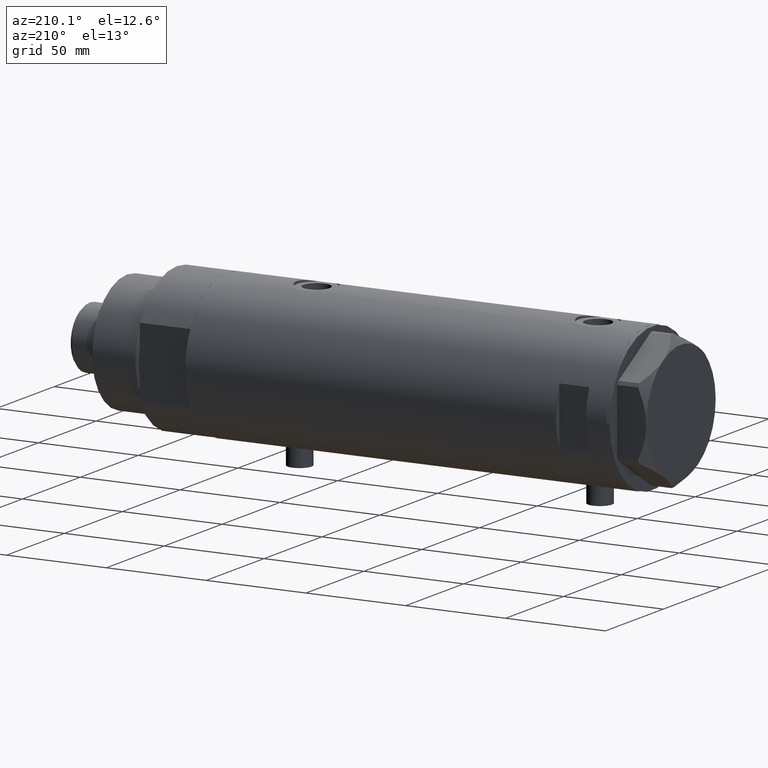
[diagram: clean part render]
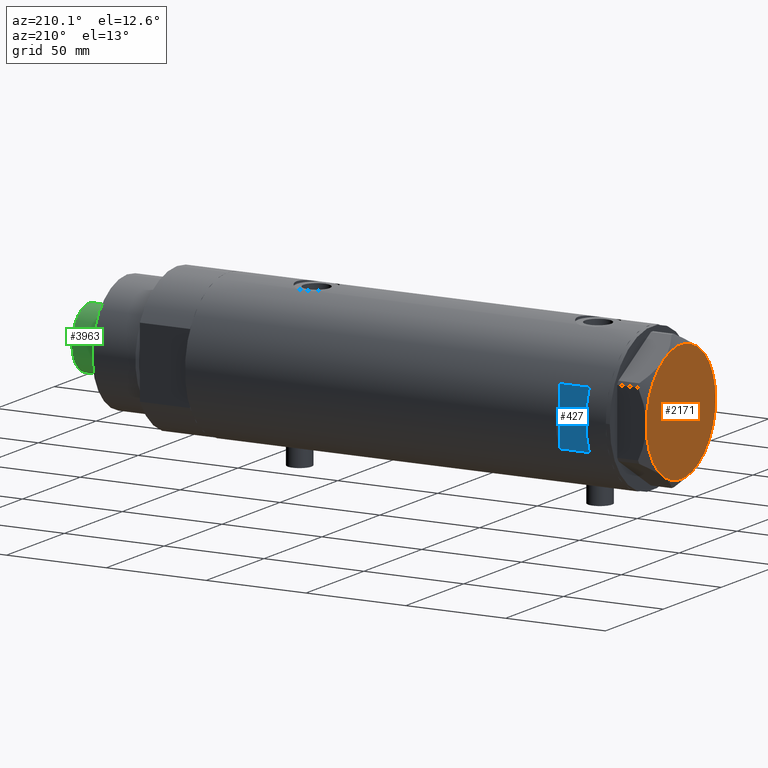
[diagram: same view with three faces highlighted in distinct colors, each labeled with its STEP entity id]
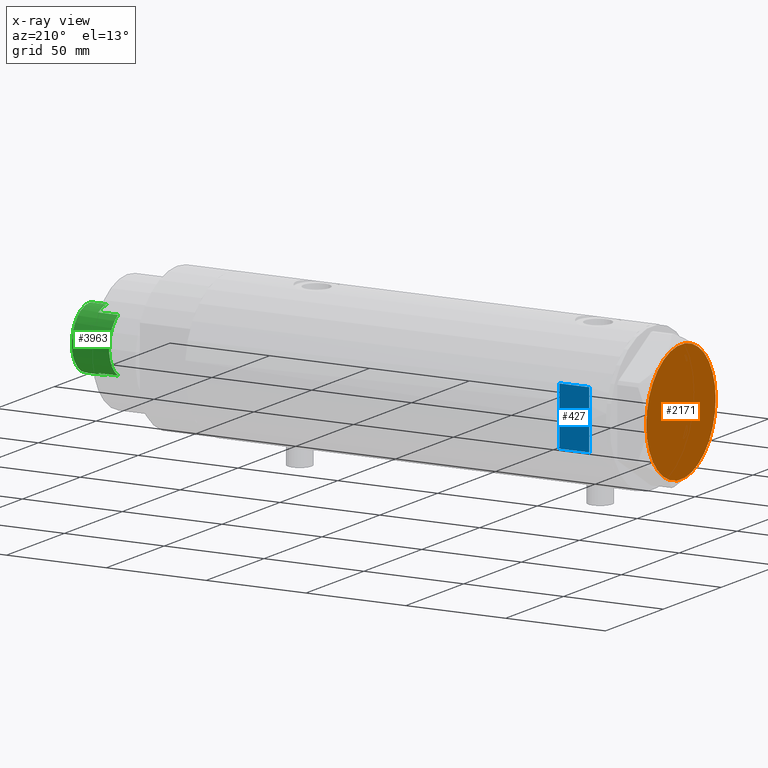
[diagram: x-ray of the same camera — body ghosted, the three highlighted faces saturated]
A machine part, auxiliary view with three faces highlighted in distinct colors.
The next image is the same camera in x-ray (body ghosted, the three faces saturated) — at least one of them is partly hidden behind the body in this view.
Their STEP definitions:

[orange] entity #2171 — the highlighted planar face has unit normal (-1, -0, 0).
#147 = CARTESIAN_POINT ( 'NONE',  ( 0.000000000000000000, 0.000000000000000000, 14.50000000000000000 ) ) ;
#154 = AXIS2_PLACEMENT_3D ( 'NONE', #147, #1522, #2904 ) ;
#163 = VERTEX_POINT ( 'NONE', #2299 ) ;
#252 = VERTEX_POINT ( 'NONE', #1017 ) ;
#326 = DIRECTION ( 'NONE',  ( 1.000000000000000000, 0.000000000000000000, 0.000000000000000000 ) ) ;
#576 = CARTESIAN_POINT ( 'NONE',  ( 0.000000000000000000, 0.000000000000000000, 14.50000000000000000 ) ) ;
#628 = CARTESIAN_POINT ( 'NONE',  ( -14.99999999999999645, -25.98076211353316367, 14.50000000000000000 ) ) ;
#657 = EDGE_LOOP ( 'NONE', ( #2650, #2087, #3191, #1166, #1111, #3666 ) ) ;
#757 = DIRECTION ( 'NONE',  ( 1.000000000000000000, 0.000000000000000000, 0.000000000000000000 ) ) ;
#834 = VERTEX_POINT ( 'NONE', #2474 ) ;
#932 = CARTESIAN_POINT ( 'NONE',  ( -30.00000000000000000, 0.000000000000000000, 14.50000000000000000 ) ) ;
#934 = DIRECTION ( 'NONE',  ( 1.000000000000000000, 0.000000000000000000, 0.000000000000000000 ) ) ;
#941 = CARTESIAN_POINT ( 'NONE',  ( 0.000000000000000000, 0.000000000000000000, 14.50000000000000000 ) ) ;
#964 = PLANE ( 'NONE',  #1020 ) ;
#982 = FACE_OUTER_BOUND ( 'NONE', #657, .T. ) ;
#1017 = CARTESIAN_POINT ( 'NONE',  ( -14.99999999999999645, 25.98076211353316367, 14.50000000000000000 ) ) ;
#1020 = AXIS2_PLACEMENT_3D ( 'NONE', #941, #3719, #1624 ) ;
#1111 = ORIENTED_EDGE ( 'NONE', *, *, #1738, .T. ) ;
#1166 = ORIENTED_EDGE ( 'NONE', *, *, #3313, .T. ) ;
#1297 = CIRCLE ( 'NONE', #1444, 30.00000000000000000 ) ;
#1299 = DIRECTION ( 'NONE',  ( 1.000000000000000000, 0.000000000000000000, 0.000000000000000000 ) ) ;
#1444 = AXIS2_PLACEMENT_3D ( 'NONE', #4167, #1779, #757 ) ;
#1505 = EDGE_CURVE ( 'NONE', #4091, #252, #1297, .T. ) ;
#1521 = CIRCLE ( 'NONE', #154, 30.00000000000000000 ) ;
#1522 = DIRECTION ( 'NONE',  ( 0.000000000000000000, 0.000000000000000000, 1.000000000000000000 ) ) ;
#1624 = DIRECTION ( 'NONE',  ( 1.000000000000000000, 0.000000000000000000, -0.000000000000000000 ) ) ;
#1738 = EDGE_CURVE ( 'NONE', #2560, #3235, #1521, .T. ) ;
#1779 = DIRECTION ( 'NONE',  ( 0.000000000000000000, 0.000000000000000000, 1.000000000000000000 ) ) ;
#1831 = AXIS2_PLACEMENT_3D ( 'NONE', #3735, #2653, #1299 ) ;
#2087 = ORIENTED_EDGE ( 'NONE', *, *, #2618, .T. ) ;
#2171 = ADVANCED_FACE ( 'NONE', ( #982 ), #964, .T. ) ;
#2210 = EDGE_CURVE ( 'NONE', #163, #834, #3860, .T. ) ;
#2299 = CARTESIAN_POINT ( 'NONE',  ( 14.99999999999998757, -25.98076211353316722, 14.50000000000000000 ) ) ;
#2300 = CIRCLE ( 'NONE', #2960, 30.00000000000000000 ) ;
#2309 = CIRCLE ( 'NONE', #2451, 30.00000000000000000 ) ;
#2451 = AXIS2_PLACEMENT_3D ( 'NONE', #2996, #2719, #934 ) ;
#2474 = CARTESIAN_POINT ( 'NONE',  ( 30.00000000000000000, 9.013887592422954582E-15, 14.50000000000000000 ) ) ;
#2560 = VERTEX_POINT ( 'NONE', #932 ) ;
#2618 = EDGE_CURVE ( 'NONE', #834, #4091, #2300, .T. ) ;
#2650 = ORIENTED_EDGE ( 'NONE', *, *, #2210, .T. ) ;
#2653 = DIRECTION ( 'NONE',  ( 0.000000000000000000, 0.000000000000000000, 1.000000000000000000 ) ) ;
#2719 = DIRECTION ( 'NONE',  ( 0.000000000000000000, 0.000000000000000000, 1.000000000000000000 ) ) ;
#2779 = CARTESIAN_POINT ( 'NONE',  ( 0.000000000000000000, 0.000000000000000000, 14.50000000000000000 ) ) ;
#2822 = CIRCLE ( 'NONE', #3994, 30.00000000000000000 ) ;
#2904 = DIRECTION ( 'NONE',  ( 1.000000000000000000, 0.000000000000000000, 0.000000000000000000 ) ) ;
#2960 = AXIS2_PLACEMENT_3D ( 'NONE', #576, #4458, #326 ) ;
#2996 = CARTESIAN_POINT ( 'NONE',  ( 0.000000000000000000, 0.000000000000000000, 14.50000000000000000 ) ) ;
#3191 = ORIENTED_EDGE ( 'NONE', *, *, #1505, .T. ) ;
#3235 = VERTEX_POINT ( 'NONE', #628 ) ;
#3313 = EDGE_CURVE ( 'NONE', #252, #2560, #2822, .T. ) ;
#3492 = DIRECTION ( 'NONE',  ( 1.000000000000000000, 0.000000000000000000, 0.000000000000000000 ) ) ;
#3650 = EDGE_CURVE ( 'NONE', #3235, #163, #2309, .T. ) ;
#3666 = ORIENTED_EDGE ( 'NONE', *, *, #3650, .T. ) ;
#3719 = DIRECTION ( 'NONE',  ( 0.000000000000000000, 0.000000000000000000, 1.000000000000000000 ) ) ;
#3735 = CARTESIAN_POINT ( 'NONE',  ( 0.000000000000000000, 0.000000000000000000, 14.50000000000000000 ) ) ;
#3756 = CARTESIAN_POINT ( 'NONE',  ( 14.99999999999999467, 25.98076211353316367, 14.50000000000000000 ) ) ;
#3860 = CIRCLE ( 'NONE', #1831, 30.00000000000000000 ) ;
#3994 = AXIS2_PLACEMENT_3D ( 'NONE', #2779, #4107, #3492 ) ;
#4091 = VERTEX_POINT ( 'NONE', #3756 ) ;
#4107 = DIRECTION ( 'NONE',  ( 0.000000000000000000, 0.000000000000000000, 1.000000000000000000 ) ) ;
#4167 = CARTESIAN_POINT ( 'NONE',  ( 0.000000000000000000, 0.000000000000000000, 14.50000000000000000 ) ) ;
#4458 = DIRECTION ( 'NONE',  ( 0.000000000000000000, 0.000000000000000000, 1.000000000000000000 ) ) ;

[blue] entity #427 — the highlighted planar face has unit normal (0, -1, -0).
#188 = FACE_OUTER_BOUND ( 'NONE', #681, .T. ) ;
#212 = DIRECTION ( 'NONE',  ( 1.000000000000000000, -0.000000000000000000, -0.000000000000000000 ) ) ;
#333 = ORIENTED_EDGE ( 'NONE', *, *, #1278, .T. ) ;
#427 = ADVANCED_FACE ( 'NONE', ( #188 ), #3998, .F. ) ;
#437 = VECTOR ( 'NONE', #212, 1000.000000000000000 ) ;
#491 = DIRECTION ( 'NONE',  ( 0.000000000000000000, 0.000000000000000000, 1.000000000000000000 ) ) ;
#593 = CARTESIAN_POINT ( 'NONE',  ( 14.49137674618942739, 33.50000000000000000, 95.40000000000001990 ) ) ;
#681 = EDGE_LOOP ( 'NONE', ( #333, #1574, #2895, #3363 ) ) ;
#685 = DIRECTION ( 'NONE',  ( -0.000000000000000000, -0.000000000000000000, -1.000000000000000000 ) ) ;
#707 = CARTESIAN_POINT ( 'NONE',  ( -36.50000000000000000, 33.50000000000000000, 95.40000000000001990 ) ) ;
#1049 = VERTEX_POINT ( 'NONE', #3232 ) ;
#1102 = CARTESIAN_POINT ( 'NONE',  ( -14.49137674618942739, 33.50000000000000000, 95.40000000000001990 ) ) ;
#1141 = VERTEX_POINT ( 'NONE', #2813 ) ;
#1278 = EDGE_CURVE ( 'NONE', #4402, #1141, #2583, .T. ) ;
#1574 = ORIENTED_EDGE ( 'NONE', *, *, #2963, .F. ) ;
#1975 = LINE ( 'NONE', #3366, #437 ) ;
#2133 = LINE ( 'NONE', #707, #4148 ) ;
#2204 = LINE ( 'NONE', #3605, #2455 ) ;
#2257 = DIRECTION ( 'NONE',  ( 0.000000000000000000, -1.000000000000000000, -0.000000000000000000 ) ) ;
#2294 = EDGE_CURVE ( 'NONE', #3908, #4402, #2133, .T. ) ;
#2455 = VECTOR ( 'NONE', #491, 1000.000000000000000 ) ;
#2583 = LINE ( 'NONE', #3035, #2663 ) ;
#2663 = VECTOR ( 'NONE', #685, 1000.000000000000000 ) ;
#2813 = CARTESIAN_POINT ( 'NONE',  ( 14.49137674618942384, 33.50000000000000000, 80.40000000000003411 ) ) ;
#2895 = ORIENTED_EDGE ( 'NONE', *, *, #4036, .T. ) ;
#2963 = EDGE_CURVE ( 'NONE', #1049, #1141, #1975, .T. ) ;
#3035 = CARTESIAN_POINT ( 'NONE',  ( 14.49137674618942562, 33.50000000000000000, -105.4000000000000057 ) ) ;
#3155 = DIRECTION ( 'NONE',  ( 1.000000000000000000, -0.000000000000000000, -0.000000000000000000 ) ) ;
#3232 = CARTESIAN_POINT ( 'NONE',  ( -14.49137674618942562, 33.50000000000000000, 80.40000000000003411 ) ) ;
#3326 = AXIS2_PLACEMENT_3D ( 'NONE', #4422, #2257, #3658 ) ;
#3363 = ORIENTED_EDGE ( 'NONE', *, *, #2294, .T. ) ;
#3366 = CARTESIAN_POINT ( 'NONE',  ( -36.50000000000000000, 33.50000000000000000, 80.40000000000003411 ) ) ;
#3605 = CARTESIAN_POINT ( 'NONE',  ( -14.49137674618942562, 33.50000000000000000, -105.4000000000000057 ) ) ;
#3658 = DIRECTION ( 'NONE',  ( 0.000000000000000000, 0.000000000000000000, -1.000000000000000000 ) ) ;
#3908 = VERTEX_POINT ( 'NONE', #1102 ) ;
#3998 = PLANE ( 'NONE',  #3326 ) ;
#4036 = EDGE_CURVE ( 'NONE', #1049, #3908, #2204, .T. ) ;
#4148 = VECTOR ( 'NONE', #3155, 1000.000000000000000 ) ;
#4402 = VERTEX_POINT ( 'NONE', #593 ) ;
#4422 = CARTESIAN_POINT ( 'NONE',  ( -36.50000000000000000, 33.50000000000000000, 95.40000000000001990 ) ) ;

[green] entity #3963 — the highlighted cylindrical surface (edge-blend (fillet) strip) has radius 15.5 mm, axis along (-1, -0, 0).
#14 = EDGE_CURVE ( 'NONE', #87, #725, #3980, .T. ) ;
#87 = VERTEX_POINT ( 'NONE', #4339 ) ;
#174 = ORIENTED_EDGE ( 'NONE', *, *, #1581, .T. ) ;
#226 = FACE_OUTER_BOUND ( 'NONE', #3723, .T. ) ;
#267 = CARTESIAN_POINT ( 'NONE',  ( 13.48630416385452868, 7.639999999999997904, 245.0000000000000000 ) ) ;
#280 = LINE ( 'NONE', #4073, #2365 ) ;
#294 = CIRCLE ( 'NONE', #2817, 15.50000000000000000 ) ;
#341 = DIRECTION ( 'NONE',  ( 1.000000000000000000, 0.000000000000000000, 0.000000000000000000 ) ) ;
#360 = ORIENTED_EDGE ( 'NONE', *, *, #2492, .T. ) ;
#418 = ORIENTED_EDGE ( 'NONE', *, *, #14, .T. ) ;
#555 = ORIENTED_EDGE ( 'NONE', *, *, #2345, .T. ) ;
#559 = DIRECTION ( 'NONE',  ( -0.000000000000000000, -0.000000000000000000, -1.000000000000000000 ) ) ;
#591 = VERTEX_POINT ( 'NONE', #4124 ) ;
#725 = VERTEX_POINT ( 'NONE', #2134 ) ;
#801 = CARTESIAN_POINT ( 'NONE',  ( -15.49999999999999822, 0.000000000000000000, 253.5999999999999375 ) ) ;
#821 = ORIENTED_EDGE ( 'NONE', *, *, #2556, .F. ) ;
#868 = AXIS2_PLACEMENT_3D ( 'NONE', #2929, #2566, #3234 ) ;
#959 = DIRECTION ( 'NONE',  ( -0.000000000000000000, -0.000000000000000000, -1.000000000000000000 ) ) ;
#994 = EDGE_CURVE ( 'NONE', #4217, #591, #3108, .T. ) ;
#995 = VECTOR ( 'NONE', #2927, 1000.000000000000000 ) ;
#1045 = DIRECTION ( 'NONE',  ( 1.000000000000000000, 0.000000000000000000, 0.000000000000000000 ) ) ;
#1203 = CARTESIAN_POINT ( 'NONE',  ( 15.49999999999999822, 1.898202538678397163E-15, 245.0000000000000000 ) ) ;
#1238 = AXIS2_PLACEMENT_3D ( 'NONE', #3628, #559, #2270 ) ;
#1288 = DIRECTION ( 'NONE',  ( 0.000000000000000000, 0.000000000000000000, -1.000000000000000000 ) ) ;
#1323 = LINE ( 'NONE', #4419, #2040 ) ;
#1340 = EDGE_CURVE ( 'NONE', #4217, #87, #4130, .T. ) ;
#1389 = CARTESIAN_POINT ( 'NONE',  ( 0.000000000000000000, 0.000000000000000000, 245.0000000000000000 ) ) ;
#1581 = EDGE_CURVE ( 'NONE', #3561, #591, #294, .T. ) ;
#1631 = CARTESIAN_POINT ( 'NONE',  ( 13.48630416385452868, 7.639999999999997904, 235.0000000000000000 ) ) ;
#1966 = AXIS2_PLACEMENT_3D ( 'NONE', #3850, #3802, #2494 ) ;
#2018 = CIRCLE ( 'NONE', #868, 15.50000000000000000 ) ;
#2040 = VECTOR ( 'NONE', #3440, 1000.000000000000000 ) ;
#2082 = CARTESIAN_POINT ( 'NONE',  ( -15.49999999999999822, 0.000000000000000000, 245.0000000000000000 ) ) ;
#2134 = CARTESIAN_POINT ( 'NONE',  ( 15.50000000000000178, 1.898202538678397557E-15, 245.0000000000000000 ) ) ;
#2138 = ORIENTED_EDGE ( 'NONE', *, *, #994, .F. ) ;
#2140 = EDGE_CURVE ( 'NONE', #2226, #4443, #1323, .T. ) ;
#2226 = VERTEX_POINT ( 'NONE', #267 ) ;
#2227 = VECTOR ( 'NONE', #4076, 1000.000000000000000 ) ;
#2270 = DIRECTION ( 'NONE',  ( -1.000000000000000000, 0.000000000000000000, 0.000000000000000000 ) ) ;
#2345 = EDGE_CURVE ( 'NONE', #4443, #3131, #3931, .T. ) ;
#2365 = VECTOR ( 'NONE', #959, 1000.000000000000000 ) ;
#2492 = EDGE_CURVE ( 'NONE', #725, #2226, #2018, .T. ) ;
#2494 = DIRECTION ( 'NONE',  ( 1.000000000000000000, 0.000000000000000000, 0.000000000000000000 ) ) ;
#2547 = ORIENTED_EDGE ( 'NONE', *, *, #1340, .T. ) ;
#2556 = EDGE_CURVE ( 'NONE', #3561, #3131, #280, .T. ) ;
#2566 = DIRECTION ( 'NONE',  ( 0.000000000000000000, 0.000000000000000000, 1.000000000000000000 ) ) ;
#2770 = DIRECTION ( 'NONE',  ( 0.000000000000000000, 0.000000000000000000, 1.000000000000000000 ) ) ;
#2817 = AXIS2_PLACEMENT_3D ( 'NONE', #1389, #2770, #1045 ) ;
#2916 = CYLINDRICAL_SURFACE ( 'NONE', #1238, 15.49999999999999822 ) ;
#2927 = DIRECTION ( 'NONE',  ( -0.000000000000000000, -0.000000000000000000, -1.000000000000000000 ) ) ;
#2929 = CARTESIAN_POINT ( 'NONE',  ( 0.000000000000000000, 0.000000000000000000, 245.0000000000000000 ) ) ;
#3108 = LINE ( 'NONE', #2082, #2227 ) ;
#3131 = VERTEX_POINT ( 'NONE', #3244 ) ;
#3192 = CARTESIAN_POINT ( 'NONE',  ( -13.48630416385452868, 7.639999999999998792, 245.0000000000000000 ) ) ;
#3234 = DIRECTION ( 'NONE',  ( 1.000000000000000000, 0.000000000000000000, 0.000000000000000000 ) ) ;
#3244 = CARTESIAN_POINT ( 'NONE',  ( -13.48630416385452691, 7.640000000000085834, 235.0000000000000000 ) ) ;
#3368 = CARTESIAN_POINT ( 'NONE',  ( 0.000000000000000000, 0.000000000000000000, 253.5999999999999375 ) ) ;
#3440 = DIRECTION ( 'NONE',  ( -0.000000000000000000, -0.000000000000000000, -1.000000000000000000 ) ) ;
#3548 = AXIS2_PLACEMENT_3D ( 'NONE', #3368, #1288, #341 ) ;
#3561 = VERTEX_POINT ( 'NONE', #3192 ) ;
#3628 = CARTESIAN_POINT ( 'NONE',  ( 0.000000000000000000, 0.000000000000000000, 245.0000000000000000 ) ) ;
#3723 = EDGE_LOOP ( 'NONE', ( #2547, #418, #360, #4088, #555, #821, #174, #2138 ) ) ;
#3802 = DIRECTION ( 'NONE',  ( 0.000000000000000000, 0.000000000000000000, 1.000000000000000000 ) ) ;
#3850 = CARTESIAN_POINT ( 'NONE',  ( 0.000000000000000000, 0.000000000000000000, 235.0000000000000000 ) ) ;
#3931 = CIRCLE ( 'NONE', #1966, 15.50000000000004086 ) ;
#3963 = ADVANCED_FACE ( 'NONE', ( #226 ), #2916, .T. ) ;
#3980 = LINE ( 'NONE', #1203, #995 ) ;
#4073 = CARTESIAN_POINT ( 'NONE',  ( -13.48630416385452868, 7.639999999999998792, 245.0000000000000000 ) ) ;
#4076 = DIRECTION ( 'NONE',  ( -0.000000000000000000, -0.000000000000000000, -1.000000000000000000 ) ) ;
#4088 = ORIENTED_EDGE ( 'NONE', *, *, #2140, .T. ) ;
#4124 = CARTESIAN_POINT ( 'NONE',  ( -15.50000000000000178, 0.000000000000000000, 245.0000000000000000 ) ) ;
#4130 = CIRCLE ( 'NONE', #3548, 15.49999999999999822 ) ;
#4217 = VERTEX_POINT ( 'NONE', #801 ) ;
#4339 = CARTESIAN_POINT ( 'NONE',  ( 15.49999999999999822, 1.898202538678397163E-15, 253.5999999999999375 ) ) ;
#4419 = CARTESIAN_POINT ( 'NONE',  ( 13.48630416385452868, 7.639999999999997904, 245.0000000000000000 ) ) ;
#4443 = VERTEX_POINT ( 'NONE', #1631 ) ;